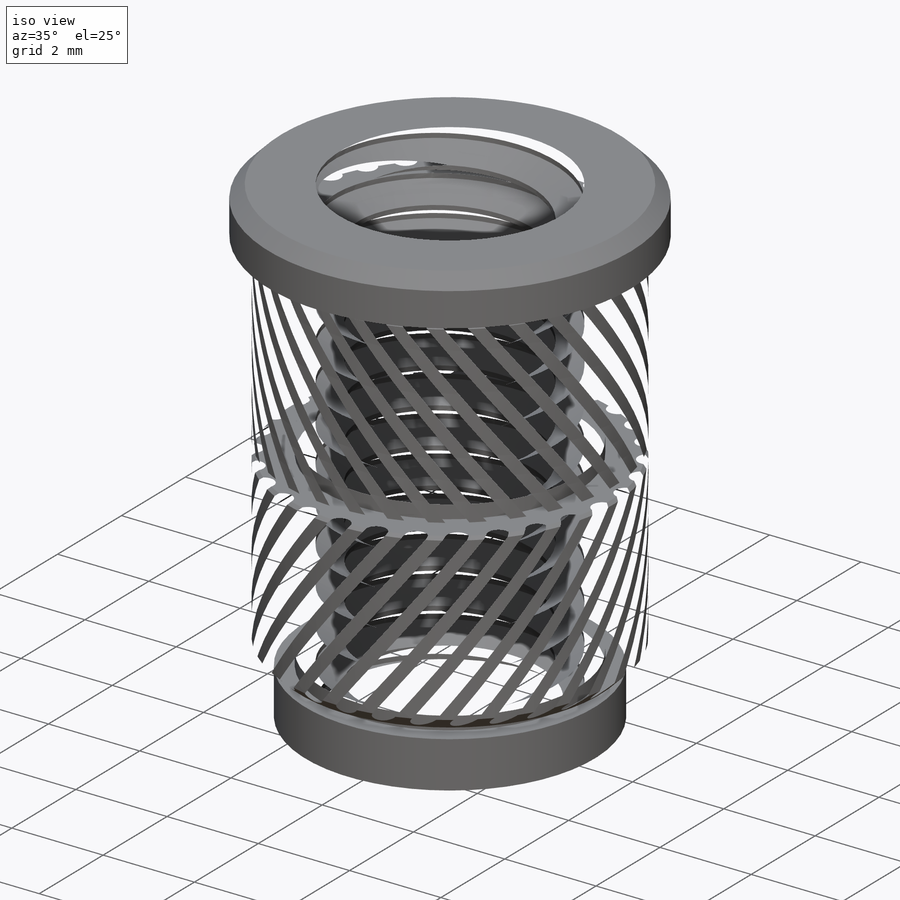
[diagram: iso view]
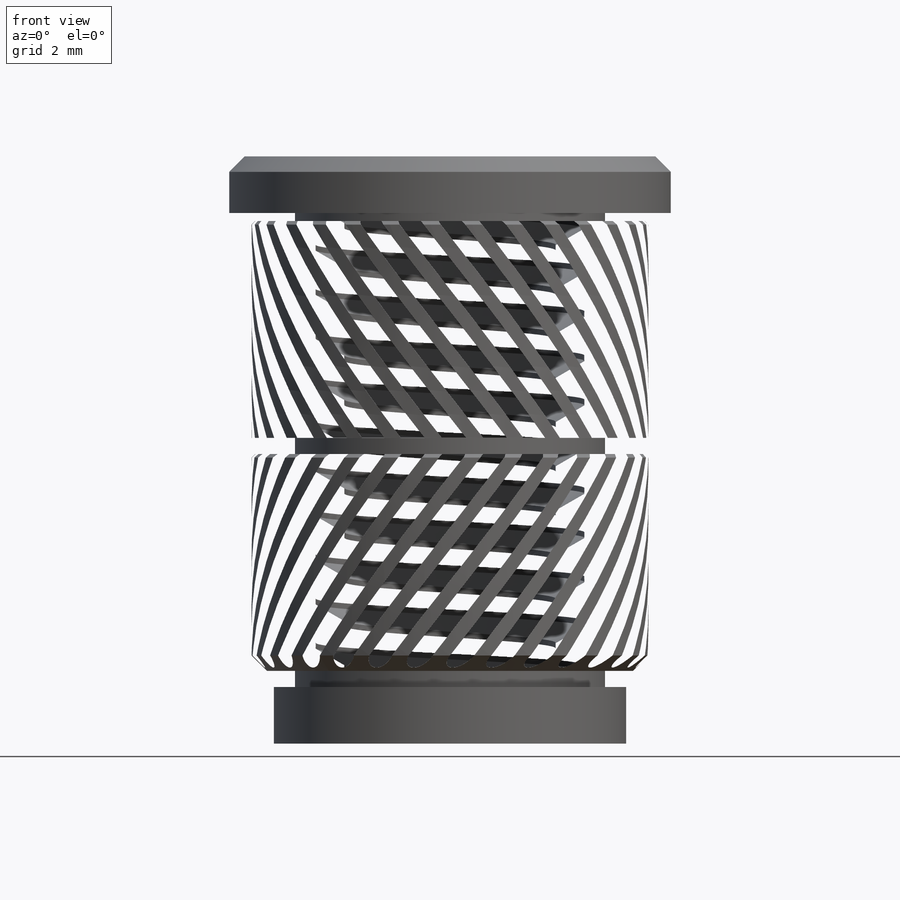
[diagram: front view]
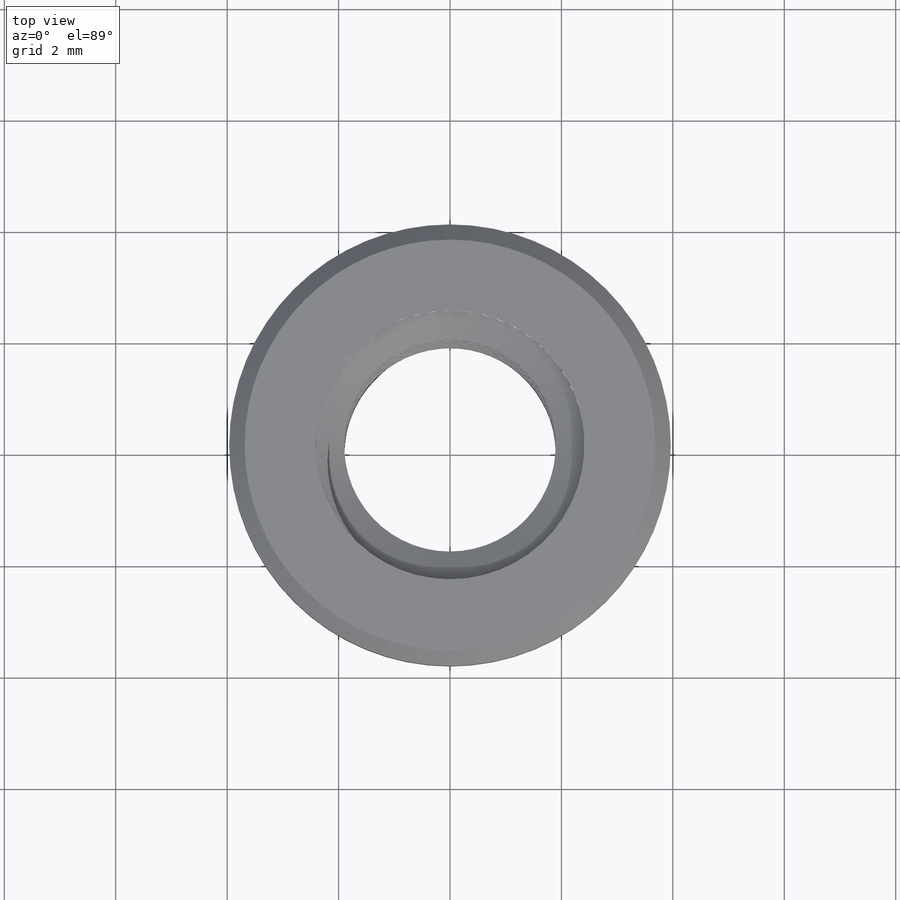
[diagram: top view]
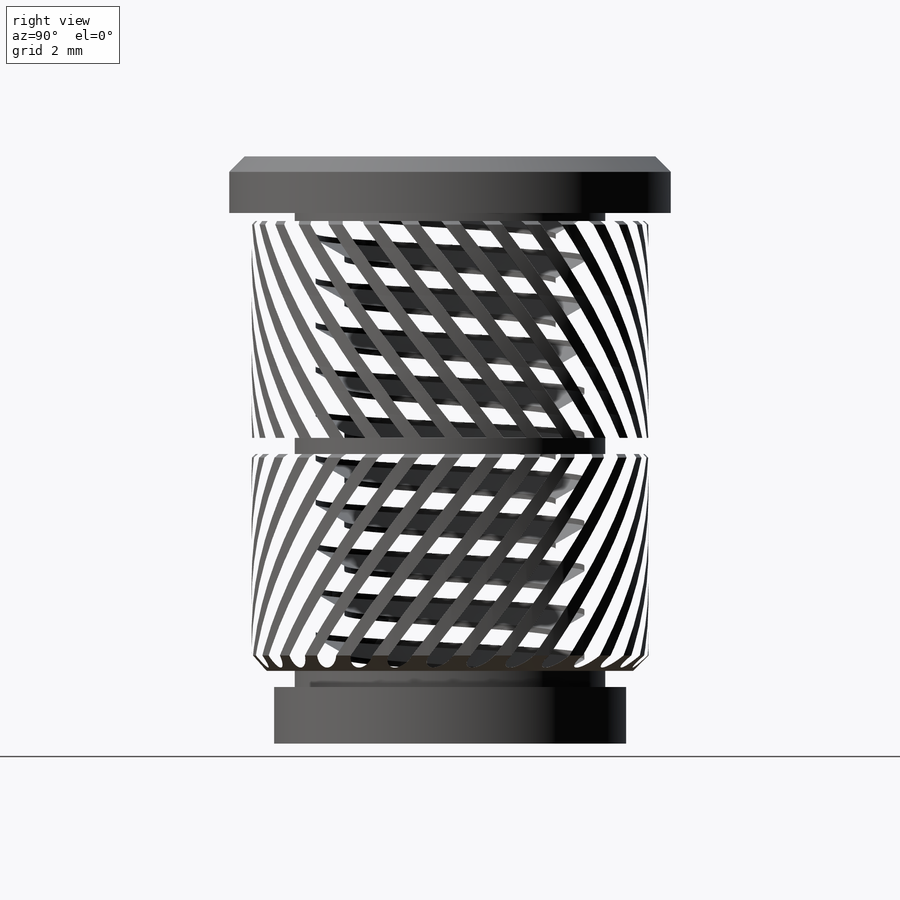
[diagram: right view]
SOLIDWORKS PART (.sldprt)
format: sldprt  version: not decoded by parser v0  size: 1,644,544 bytes
history: native  units: mm
features: sketch x11, plane x7, chamfer x2, helix x2, sweep x2, cut_extrude x2, material x1, revolve x1, cut_revolve x1, pattern_circular x1, mirror x1 (+18 scaffold rows collapsed; 4 parser-record rows omitted)
feature tree (53):
  scaffold x18  (default folders/planes/origin — collapsed)
  material  "Material <not specified>"
  parser-record x4  (decoder bookkeeping rows leaked as tree rows — omitted from the tree; the rows remain in map.json)
  sketch  "Sketch1"  dims[c1.Lg=3.9878mm c1.BaseFlange=6.3246mm c1.FlangeDia=7.9248mm c1.Flange Thickness=1.016mm c1.D1=~2.076979mm c2.D1=270.0deg c2.BodyDia=7.1247mm c2.ThreadDia=4.826mm c3.D1=1.016mm c3.D2=~0.39624mm c3.D3=~0.14478mm c3.D4=3.9878mm c4.D2=~0.28956mm c4.D4=~0.28956mm c4.Pitch=~0.79375mm c4.knurled body ht=~3.89255mm c4.Lg=9.525mm]
  sketch  "Sketch3"
  revolve  "Revolve1"  Angle=360deg
  sketch  "Sketch5"
  cut_revolve  "Cut-Revolve1"  Angle=360deg
  chamfer  "Chamfer1"  Distance=0.0635mm Angle=45deg
  chamfer  "Chamfer2"  Distance=0.277368mm Angle=45deg
  sketch  "Sketch6"
  helix  "Helix/Spiral1"  Pitch=14.2875mm Threa=14.2875mm
  sketch  "Sketch13"  dims[D1=~0.881507mm]
  sketch  "Sketch14"  dims[c1.D1=~3.96875mm c2.D1=45.0deg]
  sketch  "Sketch7"  dims[c1.D1=~0.099219mm c1.D2=~0.396875mm c1.D3=~0.534178mm c2.D3=60.0deg]
  sweep  "Sweep1"
  sketch  "Sketch9"
  cut_extrude  "Cut-Extrude1"  Depth=25.4mm
  sketch  "Sketch10"  dims[D1=4.826mm]
  cut_extrude  "Cut-Extrude2"  Depth=25.908mm
  sketch  "Sketch11"  dims[c1.D1=~6.38175mm c2.D1=7.0deg c2.D2=~0.215764mm c3.D1=~3.539385mm c4.D1=~13.978223deg c5.D1=~3.56235mm c6.D1=3.5deg c6.D2=~3.532126mm c7.D2=3.5deg]
  sketch  "Sketch12"
  helix  "Helix/Spiral2"  Pitch=4.01955mm
  sweep  "Cut-Sweep1"
  pattern_circular  "CirPattern1"  Count=30 Angle=360deg
  plane  "Plane1"
  mirror  "Mirror1"
  plane  "Contact Plane 1"
  plane  "Contact Plane 2"
  plane  "Contact Plane 3"
  plane  "Contact Plane 4"
  plane  "Contact Plane 5"
  plane  "Contact Plane 6"  Offset=0mm
decode coverage: 15 of 23 modeling features carry decoded parameters
note: ~ marks probable driven/reference dimensions
note: suppression state not decoded; provenance and decode notes live in map.json
